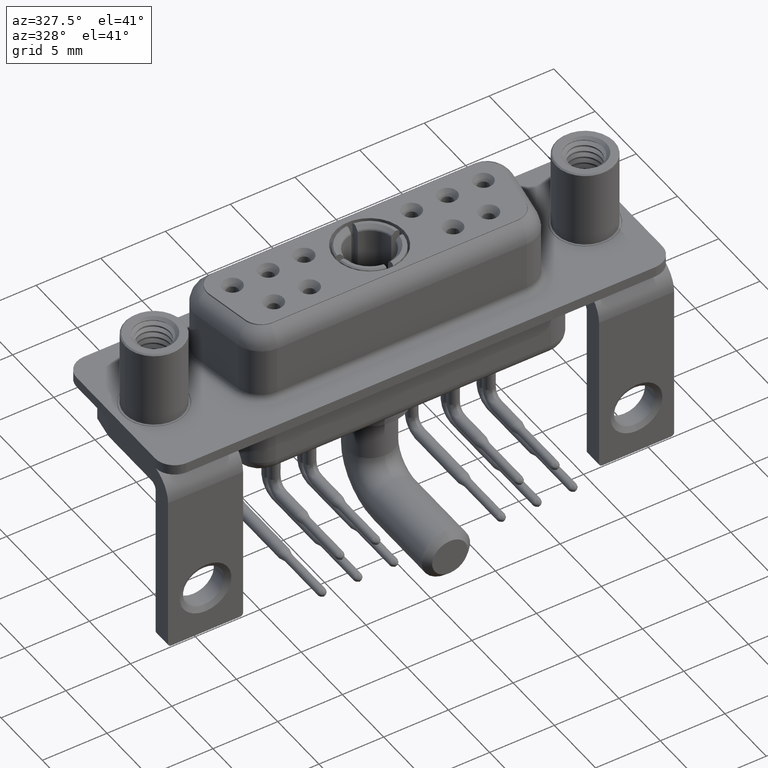
[diagram: clean part render]
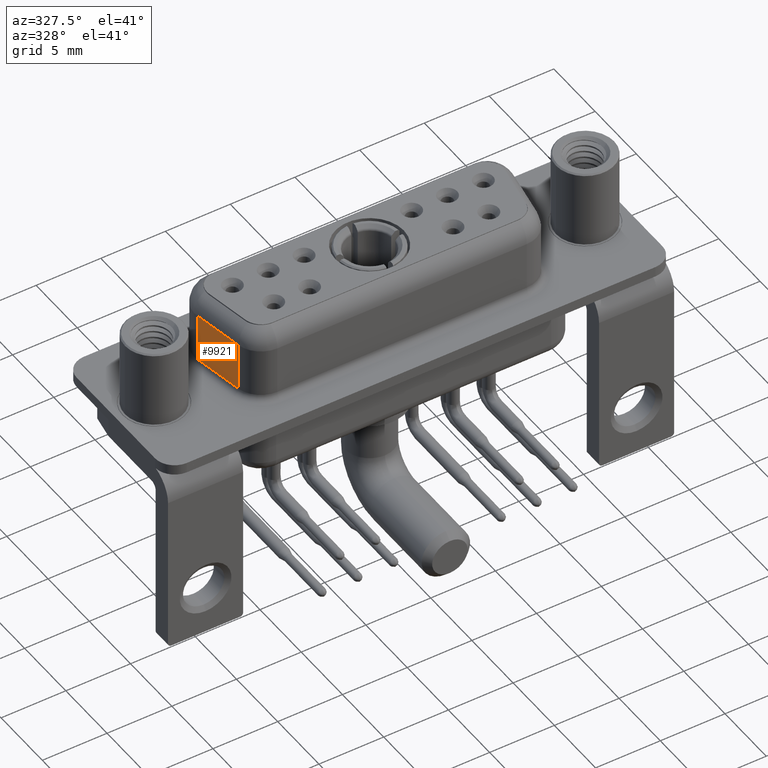
[diagram: same view with one face highlighted and labeled with its STEP entity id]
A machine part, auxiliary view. The second image highlights one B-rep face of the part: STEP entity #9921.
In plain terms, the highlighted planar face has unit normal (0.9848, 0.1736, 0).
Its self-contained STEP definition (entity closure, byte-faithful):
#621 = FACE_OUTER_BOUND ( 'NONE', #20164, .T. ) ;
#1590 = DIRECTION ( 'NONE',  ( 0.1736481776669236976, -0.9848077530122092416, 0.0000000000000000000 ) ) ;
#1829 = LINE ( 'NONE', #14926, #15753 ) ;
#2608 = CARTESIAN_POINT ( 'NONE',  ( 5.043059718738565955, -2.297296355333852347, 0.8999999999999998002 ) ) ;
#2777 = EDGE_CURVE ( 'NONE', #3333, #6398, #1829, .T. ) ;
#3333 = VERTEX_POINT ( 'NONE', #18202 ) ;
#4195 = CARTESIAN_POINT ( 'NONE',  ( 5.043059718738565955, -2.297296355333852347, 6.400000000000000355 ) ) ;
#5006 = VECTOR ( 'NONE', #18772, 1000.000000000000000 ) ;
#5092 = EDGE_CURVE ( 'NONE', #6398, #13548, #8461, .T. ) ;
#5140 = CARTESIAN_POINT ( 'NONE',  ( 5.043059718738565955, -2.297296355333852347, 6.400000000000000355 ) ) ;
#5251 = DIRECTION ( 'NONE',  ( -0.1736481776669236976, 0.9848077530122092416, 0.0000000000000000000 ) ) ;
#5470 = PLANE ( 'NONE',  #18019 ) ;
#6192 = LINE ( 'NONE', #14155, #11017 ) ;
#6398 = VERTEX_POINT ( 'NONE', #8523 ) ;
#7738 = LINE ( 'NONE', #4195, #5006 ) ;
#8052 = DIRECTION ( 'NONE',  ( -0.0000000000000000000, -0.0000000000000000000, -1.000000000000000000 ) ) ;
#8461 = LINE ( 'NONE', #15012, #12419 ) ;
#8523 = CARTESIAN_POINT ( 'NONE',  ( 4.355384493975579474, 1.602703644666148231, 0.8999999999999998002 ) ) ;
#8640 = VERTEX_POINT ( 'NONE', #19244 ) ;
#9219 = DIRECTION ( 'NONE',  ( -0.1736481776669236976, 0.9848077530122092416, -0.0000000000000000000 ) ) ;
#9293 = ORIENTED_EDGE ( 'NONE', *, *, #5092, .T. ) ;
#9547 = EDGE_CURVE ( 'NONE', #8640, #13548, #7738, .T. ) ;
#9921 = ADVANCED_FACE ( 'NONE', ( #621 ), #5470, .F. ) ;
#10102 = DIRECTION ( 'NONE',  ( 0.9848077530122092416, 0.1736481776669236976, -0.0000000000000000000 ) ) ;
#10460 = ORIENTED_EDGE ( 'NONE', *, *, #2777, .T. ) ;
#11017 = VECTOR ( 'NONE', #9219, 1000.000000000000114 ) ;
#11043 = ORIENTED_EDGE ( 'NONE', *, *, #16288, .T. ) ;
#12419 = VECTOR ( 'NONE', #1590, 1000.000000000000114 ) ;
#12928 = ORIENTED_EDGE ( 'NONE', *, *, #9547, .F. ) ;
#13548 = VERTEX_POINT ( 'NONE', #2608 ) ;
#14155 = CARTESIAN_POINT ( 'NONE',  ( 5.043059718738565955, -2.297296355333852347, 4.650000000000000355 ) ) ;
#14926 = CARTESIAN_POINT ( 'NONE',  ( 4.355384493975579474, 1.602703644666148231, 6.400000000000000355 ) ) ;
#15012 = CARTESIAN_POINT ( 'NONE',  ( 5.043059718738565955, -2.297296355333852347, 0.8999999999999998002 ) ) ;
#15753 = VECTOR ( 'NONE', #8052, 1000.000000000000000 ) ;
#16288 = EDGE_CURVE ( 'NONE', #8640, #3333, #6192, .T. ) ;
#18019 = AXIS2_PLACEMENT_3D ( 'NONE', #5140, #10102, #5251 ) ;
#18202 = CARTESIAN_POINT ( 'NONE',  ( 4.355384493975579474, 1.602703644666148231, 4.650000000000000355 ) ) ;
#18772 = DIRECTION ( 'NONE',  ( -0.0000000000000000000, -0.0000000000000000000, -1.000000000000000000 ) ) ;
#19244 = CARTESIAN_POINT ( 'NONE',  ( 5.043059718738565955, -2.297296355333852347, 4.650000000000000355 ) ) ;
#20164 = EDGE_LOOP ( 'NONE', ( #12928, #11043, #10460, #9293 ) ) ;